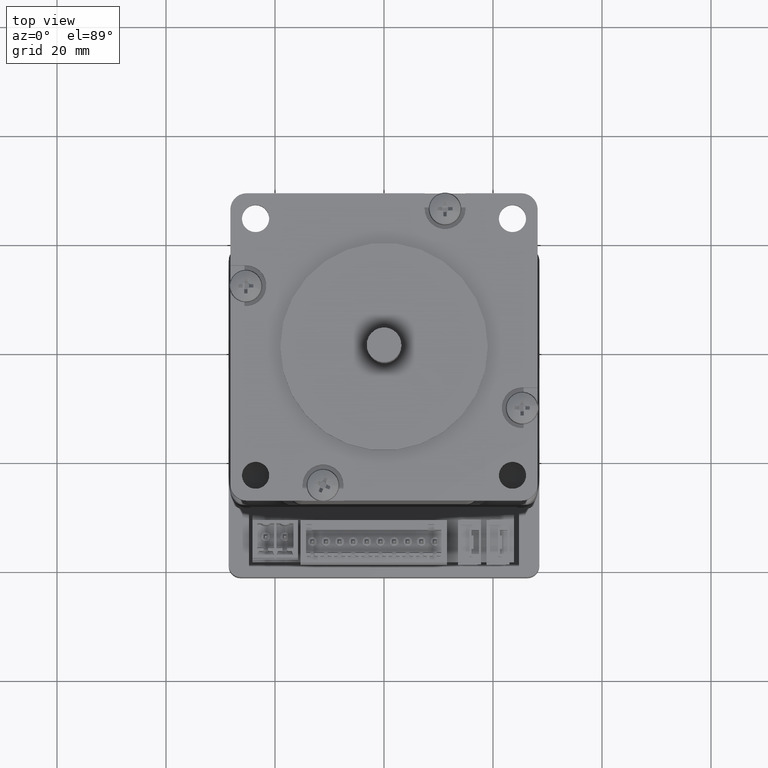
[diagram: clean part render]
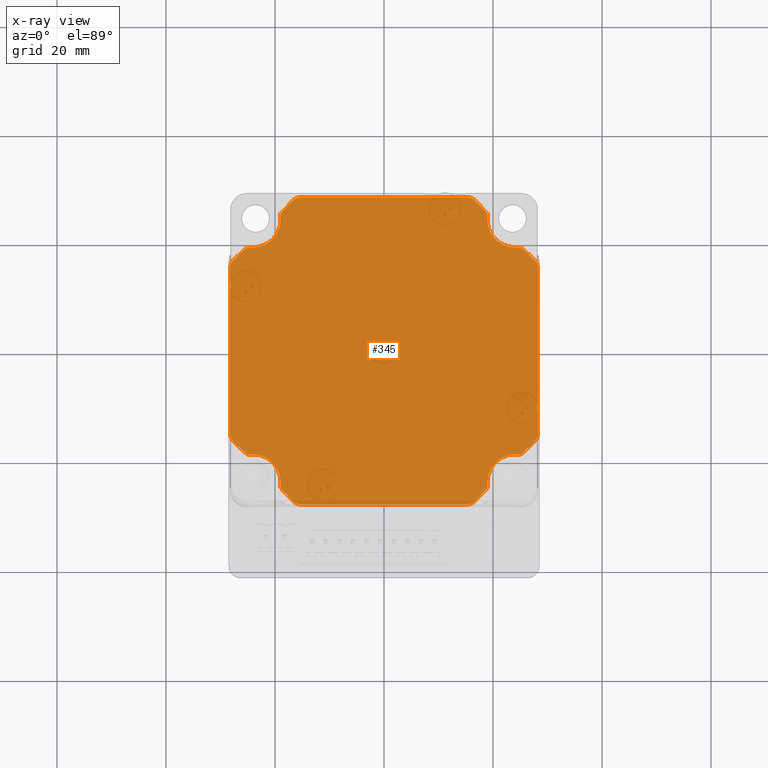
[diagram: x-ray — body ghosted, one internal face saturated and labeled with its STEP entity id]
A machine part, top view, then the same camera in x-ray: the body is ghosted and one INTERNAL B-rep face — a face not visible from any outside direction — is saturated and labeled: STEP entity #345.
In plain terms, the highlighted planar face has unit normal (0, 0, 1).
Its self-contained STEP definition (entity closure, byte-faithful):
#70=CARTESIAN_POINT('',(-4.011124E-012,-8.023884E-012,-32.000000000000007));
#71=DIRECTION('',(0.0,0.0,1.0));
#72=DIRECTION('',(1.0,0.0,0.0));
#73=AXIS2_PLACEMENT_3D('',#70,#71,#72);
#74=PLANE('',#73);
#75=CARTESIAN_POINT('',(19.0,-25.150000000000002,-32.0));
#76=VERTEX_POINT('',#75);
#77=CARTESIAN_POINT('',(16.883545204953993,-27.455423973175122,-32.0));
#78=VERTEX_POINT('',#77);
#79=CARTESIAN_POINT('',(19.0,-25.150000000000002,-32.0));
#80=DIRECTION('',(-0.676271292684829,-0.736652658103119,0.0));
#81=VECTOR('',#80,3.129594318048873);
#82=LINE('',#79,#81);
#83=EDGE_CURVE('',#76,#78,#82,.T.);
#84=ORIENTED_EDGE('',*,*,#83,.T.);
#85=CARTESIAN_POINT('',(15.189244091316818,-28.20000000000001,-32.0));
#86=VERTEX_POINT('',#85);
#87=CARTESIAN_POINT('',(15.189244091316818,-25.900000000000016,-32.0));
#88=DIRECTION('',(0.0,0.0,-1.0));
#89=DIRECTION('',(0.73665265810312,-0.676271292684828,0.0));
#90=AXIS2_PLACEMENT_3D('',#87,#88,#89);
#91=CIRCLE('',#90,2.299999999999999);
#92=EDGE_CURVE('',#78,#86,#91,.T.);
#93=ORIENTED_EDGE('',*,*,#92,.T.);
#94=CARTESIAN_POINT('',(-15.189244091316832,-28.20000000000001,-32.0));
#95=VERTEX_POINT('',#94);
#96=CARTESIAN_POINT('',(15.189244091316818,-28.20000000000001,-32.0));
#97=DIRECTION('',(-1.0,0.0,0.0));
#98=VECTOR('',#97,30.378488182633649);
#99=LINE('',#96,#98);
#100=EDGE_CURVE('',#86,#95,#99,.T.);
#101=ORIENTED_EDGE('',*,*,#100,.T.);
#102=CARTESIAN_POINT('',(-16.883545204954011,-27.455423973175108,-32.0));
#103=VERTEX_POINT('',#102);
#104=CARTESIAN_POINT('',(-15.189244091316832,-25.899999999999999,-32.0));
#105=DIRECTION('',(0.0,0.0,-1.0));
#106=DIRECTION('',(0.0,-1.0,0.0));
#107=AXIS2_PLACEMENT_3D('',#104,#105,#106);
#108=CIRCLE('',#107,2.3);
#109=EDGE_CURVE('',#95,#103,#108,.T.);
#110=ORIENTED_EDGE('',*,*,#109,.T.);
#111=CARTESIAN_POINT('',(-19.0,-25.150000000000009,-32.0));
#112=VERTEX_POINT('',#111);
#113=CARTESIAN_POINT('',(-16.883545204954011,-27.455423973175108,-32.0));
#114=DIRECTION('',(-0.676271292684829,0.736652658103119,0.0));
#115=VECTOR('',#114,3.129594318048846);
#116=LINE('',#113,#115);
#117=EDGE_CURVE('',#103,#112,#116,.T.);
#118=ORIENTED_EDGE('',*,*,#117,.T.);
#119=CARTESIAN_POINT('',(-19.0,-24.000000000000007,-32.0));
#120=VERTEX_POINT('',#119);
#121=CARTESIAN_POINT('',(-19.0,-25.150000000000009,-32.0));
#122=DIRECTION('',(0.0,1.0,0.0));
#123=VECTOR('',#122,1.150000000000002);
#124=LINE('',#121,#123);
#125=EDGE_CURVE('',#112,#120,#124,.T.);
#126=ORIENTED_EDGE('',*,*,#125,.T.);
#127=CARTESIAN_POINT('',(-24.000000000000004,-19.000000000000007,-32.0));
#128=VERTEX_POINT('',#127);
#129=CARTESIAN_POINT('',(-23.999999999968402,-23.999999999936797,-32.0));
#130=DIRECTION('',(0.0,0.0,1.0));
#131=DIRECTION('',(6.320278E-012,-1.0,0.0));
#132=AXIS2_PLACEMENT_3D('',#129,#130,#131);
#133=CIRCLE('',#132,5.0);
#134=EDGE_CURVE('',#120,#128,#133,.T.);
#135=ORIENTED_EDGE('',*,*,#134,.T.);
#136=CARTESIAN_POINT('',(-25.150000000000006,-19.000000000000007,-32.0));
#137=VERTEX_POINT('',#136);
#138=CARTESIAN_POINT('',(-24.000000000000004,-19.000000000000007,-32.0));
#139=DIRECTION('',(-1.0,0.0,0.0));
#140=VECTOR('',#139,1.150000000000002);
#141=LINE('',#138,#140);
#142=EDGE_CURVE('',#128,#137,#141,.T.);
#143=ORIENTED_EDGE('',*,*,#142,.T.);
#144=CARTESIAN_POINT('',(-27.455423973175126,-16.883545204953993,-32.0));
#145=VERTEX_POINT('',#144);
#146=CARTESIAN_POINT('',(-25.150000000000006,-19.000000000000007,-32.0));
#147=DIRECTION('',(-0.736652658103118,0.67627129268483,0.0));
#148=VECTOR('',#147,3.129594318048878);
#149=LINE('',#146,#148);
#150=EDGE_CURVE('',#137,#145,#149,.T.);
#151=ORIENTED_EDGE('',*,*,#150,.T.);
#152=CARTESIAN_POINT('',(-28.20000000000001,-15.189244091316818,-32.0));
#153=VERTEX_POINT('',#152);
#154=CARTESIAN_POINT('',(-25.900000000000016,-15.189244091316818,-32.0));
#155=DIRECTION('',(0.0,0.0,-1.0));
#156=DIRECTION('',(-0.676271292684829,-0.736652658103119,0.0));
#157=AXIS2_PLACEMENT_3D('',#154,#155,#156);
#158=CIRCLE('',#157,2.3);
#159=EDGE_CURVE('',#145,#153,#158,.T.);
#160=ORIENTED_EDGE('',*,*,#159,.T.);
#161=CARTESIAN_POINT('',(-28.20000000000001,15.189244091316837,-32.0));
#162=VERTEX_POINT('',#161);
#163=CARTESIAN_POINT('',(-28.20000000000001,-15.189244091316818,-32.0));
#164=DIRECTION('',(0.0,1.0,0.0));
#165=VECTOR('',#164,30.378488182633649);
#166=LINE('',#163,#165);
#167=EDGE_CURVE('',#153,#162,#166,.T.);
#168=ORIENTED_EDGE('',*,*,#167,.T.);
#169=CARTESIAN_POINT('',(-27.455423973175108,16.883545204954004,-32.0));
#170=VERTEX_POINT('',#169);
#171=CARTESIAN_POINT('',(-25.899999999999999,15.189244091316825,-32.0));
#172=DIRECTION('',(0.0,0.0,-1.0));
#173=DIRECTION('',(-1.0,0.0,0.0));
#174=AXIS2_PLACEMENT_3D('',#171,#172,#173);
#175=CIRCLE('',#174,2.3);
#176=EDGE_CURVE('',#162,#170,#175,.T.);
#177=ORIENTED_EDGE('',*,*,#176,.T.);
#178=CARTESIAN_POINT('',(-25.150000000000013,19.000000000000007,-32.0));
#179=VERTEX_POINT('',#178);
#180=CARTESIAN_POINT('',(-27.455423973175108,16.883545204954011,-32.0));
#181=DIRECTION('',(0.736652658103117,0.676271292684831,0.0));
#182=VECTOR('',#181,3.129594318048848);
#183=LINE('',#180,#182);
#184=EDGE_CURVE('',#170,#179,#183,.T.);
#185=ORIENTED_EDGE('',*,*,#184,.T.);
#186=CARTESIAN_POINT('',(-24.000000000000004,19.000000000000007,-32.0));
#187=VERTEX_POINT('',#186);
#188=CARTESIAN_POINT('',(-25.150000000000013,19.000000000000004,-32.0));
#189=DIRECTION('',(1.0,0.0,0.0));
#190=VECTOR('',#189,1.150000000000013);
#191=LINE('',#188,#190);
#192=EDGE_CURVE('',#179,#187,#191,.T.);
#193=ORIENTED_EDGE('',*,*,#192,.T.);
#194=CARTESIAN_POINT('',(-19.0,24.000000000000007,-32.0));
#195=VERTEX_POINT('',#194);
#196=CARTESIAN_POINT('',(-24.000000000000004,24.000000000000014,-32.0));
#197=DIRECTION('',(0.0,0.0,1.0));
#198=DIRECTION('',(-1.0,0.0,0.0));
#199=AXIS2_PLACEMENT_3D('',#196,#197,#198);
#200=CIRCLE('',#199,5.0);
#201=EDGE_CURVE('',#187,#195,#200,.T.);
#202=ORIENTED_EDGE('',*,*,#201,.T.);
#203=CARTESIAN_POINT('',(-19.000000000000011,25.149999999999991,-32.0));
#204=VERTEX_POINT('',#203);
#205=CARTESIAN_POINT('',(-19.0,24.000000000000014,-32.0));
#206=DIRECTION('',(0.0,1.0,0.0));
#207=VECTOR('',#206,1.149999999999984);
#208=LINE('',#205,#207);
#209=EDGE_CURVE('',#195,#204,#208,.T.);
#210=ORIENTED_EDGE('',*,*,#209,.T.);
#211=CARTESIAN_POINT('',(-16.883545204953997,27.455423973175112,-32.0));
#212=VERTEX_POINT('',#211);
#213=CARTESIAN_POINT('',(-19.000000000000011,25.149999999999999,-32.0));
#214=DIRECTION('',(0.67627129268483,0.736652658103118,0.0));
#215=VECTOR('',#214,3.129594318048878);
#216=LINE('',#213,#215);
#217=EDGE_CURVE('',#204,#212,#216,.T.);
#218=ORIENTED_EDGE('',*,*,#217,.T.);
#219=CARTESIAN_POINT('',(-15.189244091316827,28.200000000000006,-32.0));
#220=VERTEX_POINT('',#219);
#221=CARTESIAN_POINT('',(-15.189244091316827,25.900000000000016,-32.0));
#222=DIRECTION('',(0.0,0.0,-1.0));
#223=DIRECTION('',(-0.73665265810312,0.676271292684828,0.0));
#224=AXIS2_PLACEMENT_3D('',#221,#222,#223);
#225=CIRCLE('',#224,2.299999999999999);
#226=EDGE_CURVE('',#212,#220,#225,.T.);
#227=ORIENTED_EDGE('',*,*,#226,.T.);
#228=CARTESIAN_POINT('',(15.189244091316834,28.200000000000006,-32.0));
#229=VERTEX_POINT('',#228);
#230=CARTESIAN_POINT('',(-15.189244091316825,28.20000000000001,-32.0));
#231=DIRECTION('',(1.0,0.0,0.0));
#232=VECTOR('',#231,30.37848818263366);
#233=LINE('',#230,#232);
#234=EDGE_CURVE('',#220,#229,#233,.T.);
#235=ORIENTED_EDGE('',*,*,#234,.T.);
#236=CARTESIAN_POINT('',(16.883545204954014,27.455423973175112,-32.0));
#237=VERTEX_POINT('',#236);
#238=CARTESIAN_POINT('',(15.189244091316837,25.899999999999999,-32.0));
#239=DIRECTION('',(0.0,0.0,-1.0));
#240=DIRECTION('',(0.0,1.0,0.0));
#241=AXIS2_PLACEMENT_3D('',#238,#239,#240);
#242=CIRCLE('',#241,2.3);
#243=EDGE_CURVE('',#229,#237,#242,.T.);
#244=ORIENTED_EDGE('',*,*,#243,.T.);
#245=CARTESIAN_POINT('',(19.000000000000007,25.149999999999991,-32.0));
#246=VERTEX_POINT('',#245);
#247=CARTESIAN_POINT('',(16.883545204954014,27.455423973175108,-32.0));
#248=DIRECTION('',(0.676271292684828,-0.73665265810312,0.0));
#249=VECTOR('',#248,3.129594318048858);
#250=LINE('',#247,#249);
#251=EDGE_CURVE('',#237,#246,#250,.T.);
#252=ORIENTED_EDGE('',*,*,#251,.T.);
#253=CARTESIAN_POINT('',(19.0,23.999999999999901,-32.0));
#254=VERTEX_POINT('',#253);
#255=CARTESIAN_POINT('',(19.000000000000007,25.149999999999999,-32.0));
#256=DIRECTION('',(0.0,-1.0,0.0));
#257=VECTOR('',#256,1.150000000000091);
#258=LINE('',#255,#257);
#259=EDGE_CURVE('',#246,#254,#258,.T.);
#260=ORIENTED_EDGE('',*,*,#259,.T.);
#261=CARTESIAN_POINT('',(24.000000000000007,19.000000000000007,-32.0));
#262=VERTEX_POINT('',#261);
#263=CARTESIAN_POINT('',(24.000000000000007,24.000000000000014,-32.0));
#264=DIRECTION('',(0.0,0.0,1.0));
#265=DIRECTION('',(0.0,1.0,0.0));
#266=AXIS2_PLACEMENT_3D('',#263,#264,#265);
#267=CIRCLE('',#266,5.0);
#268=EDGE_CURVE('',#254,#262,#267,.T.);
#269=ORIENTED_EDGE('',*,*,#268,.T.);
#270=CARTESIAN_POINT('',(25.150000000000002,19.000000000000007,-32.0));
#271=VERTEX_POINT('',#270);
#272=CARTESIAN_POINT('',(24.000000000000007,19.000000000000004,-32.0));
#273=DIRECTION('',(1.0,0.0,0.0));
#274=VECTOR('',#273,1.149999999999992);
#275=LINE('',#272,#274);
#276=EDGE_CURVE('',#262,#271,#275,.T.);
#277=ORIENTED_EDGE('',*,*,#276,.T.);
#278=CARTESIAN_POINT('',(27.455423973175122,16.883545204954004,-32.0));
#279=VERTEX_POINT('',#278);
#280=CARTESIAN_POINT('',(25.150000000000002,19.000000000000004,-32.0));
#281=DIRECTION('',(0.73665265810312,-0.676271292684828,0.0));
#282=VECTOR('',#281,3.129594318048871);
#283=LINE('',#280,#282);
#284=EDGE_CURVE('',#271,#279,#283,.T.);
#285=ORIENTED_EDGE('',*,*,#284,.T.);
#286=CARTESIAN_POINT('',(28.20000000000001,15.189244091316819,-32.0));
#287=VERTEX_POINT('',#286);
#288=CARTESIAN_POINT('',(25.899999999999999,15.189244091316825,-32.0));
#289=DIRECTION('',(0.0,0.0,-1.0));
#290=DIRECTION('',(0.676271292684832,0.736652658103116,0.0));
#291=AXIS2_PLACEMENT_3D('',#288,#289,#290);
#292=CIRCLE('',#291,2.3);
#293=EDGE_CURVE('',#279,#287,#292,.T.);
#294=ORIENTED_EDGE('',*,*,#293,.T.);
#295=CARTESIAN_POINT('',(28.20000000000001,-15.189244091316834,-32.0));
#296=VERTEX_POINT('',#295);
#297=CARTESIAN_POINT('',(28.20000000000001,15.189244091316825,-32.0));
#298=DIRECTION('',(0.0,-1.0,0.0));
#299=VECTOR('',#298,30.37848818263366);
#300=LINE('',#297,#299);
#301=EDGE_CURVE('',#287,#296,#300,.T.);
#302=ORIENTED_EDGE('',*,*,#301,.T.);
#303=CARTESIAN_POINT('',(27.455423973175108,-16.883545204954011,-32.0));
#304=VERTEX_POINT('',#303);
#305=CARTESIAN_POINT('',(25.899999999999999,-15.189244091316834,-32.0));
#306=DIRECTION('',(0.0,0.0,-1.0));
#307=DIRECTION('',(1.0,0.0,0.0));
#308=AXIS2_PLACEMENT_3D('',#305,#306,#307);
#309=CIRCLE('',#308,2.3);
#310=EDGE_CURVE('',#296,#304,#309,.T.);
#311=ORIENTED_EDGE('',*,*,#310,.T.);
#312=CARTESIAN_POINT('',(25.150000000000009,-19.000000000000007,-32.0));
#313=VERTEX_POINT('',#312);
#314=CARTESIAN_POINT('',(27.455423973175108,-16.883545204954011,-32.0));
#315=DIRECTION('',(-0.736652658103118,-0.67627129268483,0.0));
#316=VECTOR('',#315,3.12959431804885);
#317=LINE('',#314,#316);
#318=EDGE_CURVE('',#304,#313,#317,.T.);
#319=ORIENTED_EDGE('',*,*,#318,.T.);
#320=CARTESIAN_POINT('',(24.000000000000007,-19.000000000000007,-32.0));
#321=VERTEX_POINT('',#320);
#322=CARTESIAN_POINT('',(25.150000000000009,-19.000000000000007,-32.0));
#323=DIRECTION('',(-1.0,0.0,0.0));
#324=VECTOR('',#323,1.150000000000002);
#325=LINE('',#322,#324);
#326=EDGE_CURVE('',#313,#321,#325,.T.);
#327=ORIENTED_EDGE('',*,*,#326,.T.);
#328=CARTESIAN_POINT('',(19.000000000000007,-24.000000000000004,-32.0));
#329=VERTEX_POINT('',#328);
#330=CARTESIAN_POINT('',(24.000000000031605,-23.999999999936797,-32.0));
#331=DIRECTION('',(0.0,0.0,1.0));
#332=DIRECTION('',(1.0,1.264144E-011,0.0));
#333=AXIS2_PLACEMENT_3D('',#330,#331,#332);
#334=CIRCLE('',#333,5.0);
#335=EDGE_CURVE('',#321,#329,#334,.T.);
#336=ORIENTED_EDGE('',*,*,#335,.T.);
#337=CARTESIAN_POINT('',(19.000000000000007,-24.000000000000004,-32.0));
#338=DIRECTION('',(0.0,-1.0,0.0));
#339=VECTOR('',#338,1.149999999999999);
#340=LINE('',#337,#339);
#341=EDGE_CURVE('',#329,#76,#340,.T.);
#342=ORIENTED_EDGE('',*,*,#341,.T.);
#343=EDGE_LOOP('',(#84,#93,#101,#110,#118,#126,#135,#143,#151,#160,#168,#177,#185,#193,#202,#210,#218,#227,#235,#244,#252,#260,#269,#277,#285,#294,#302,#311,#319,#327,#336,#342));
#344=FACE_OUTER_BOUND('',#343,.T.);
#345=ADVANCED_FACE('',(#344),#74,.F.);